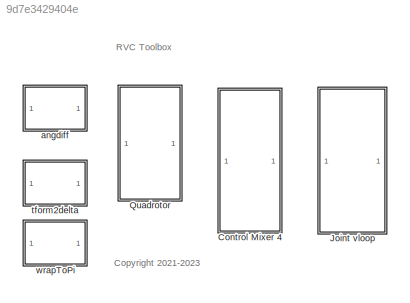
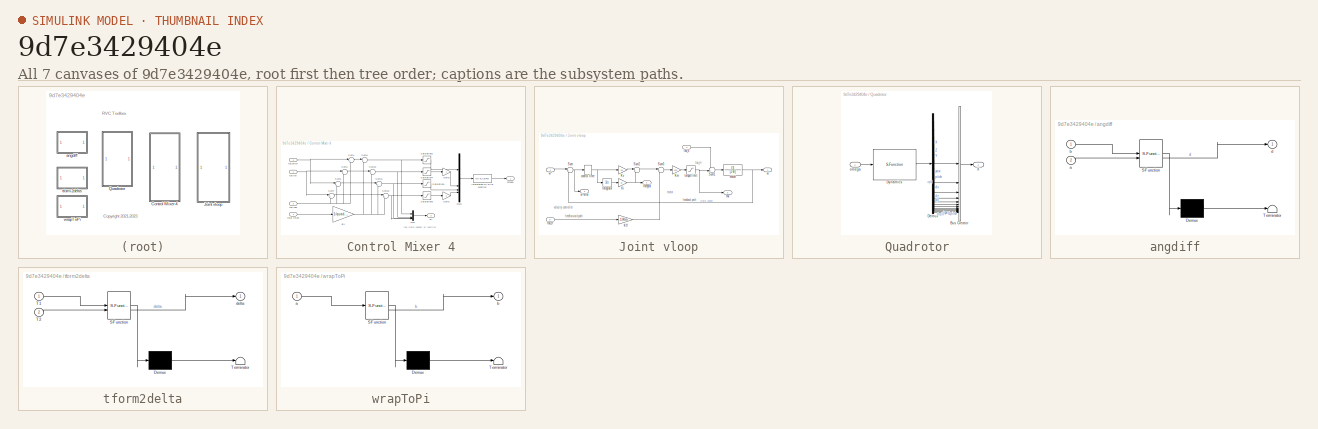
[diagram: thumbnail index - all 7 canvases of the model, root first then tree order]
MODEL slx_9d7e3429404e
KIND library
CONFIG AbsTol = auto
CONFIG EnableMultiTasking = off
CONFIG FixedStep = auto
CONFIG MaxStep = auto
CONFIG MinStep = auto
CONFIG RelTol = 1e-3
CONFIG SampleTimeConstraint = Unconstrained
CONFIG SolverName = VariableStepAuto
CONFIG StartTime = 0.0
CONFIG StopTime = 10.0
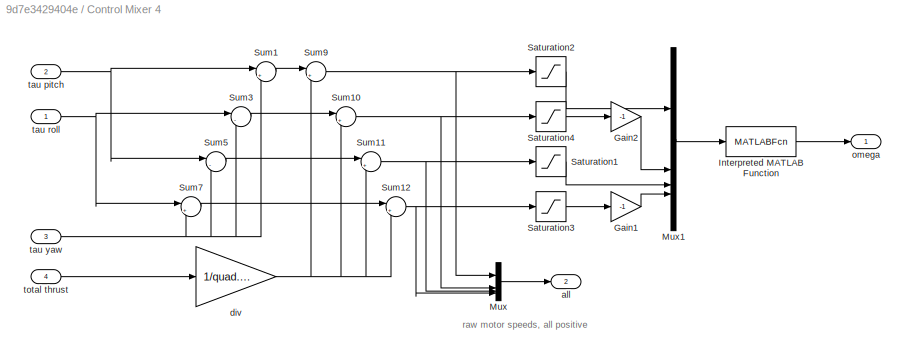
BLOCK [SubSystem] Control Mixer 4
BLOCK [Gain] Control Mixer 4/Gain1
  Gain = -1
BLOCK [Gain] Control Mixer 4/Gain2
  Gain = -1
BLOCK [MATLABFcn] Control Mixer 4/Interpreted MATLAB Function
  MATLABFcn = sign(u) .* sqrt(abs(u)/quad.b)
BLOCK [Mux] Control Mixer 4/Mux
  DisplayOption = bar
BLOCK [Mux] Control Mixer 4/Mux1
  DisplayOption = bar
BLOCK [Saturate] Control Mixer 4/Saturation1
  LowerLimit = minrot
  UpperLimit = maxrot
BLOCK [Saturate] Control Mixer 4/Saturation2
  LowerLimit = minrot
  UpperLimit = maxrot
BLOCK [Saturate] Control Mixer 4/Saturation3
  LowerLimit = minrot
  UpperLimit = maxrot
BLOCK [Saturate] Control Mixer 4/Saturation4
  LowerLimit = minrot
  UpperLimit = maxrot
BLOCK [Sum] Control Mixer 4/Sum1
  InputSameDT = on
  Inputs = |++
  OutDataTypeStr = Inherit: Same as first input
  SaturateOnIntegerOverflow = on
BLOCK [Sum] Control Mixer 4/Sum10
  InputSameDT = on
  Inputs = |++
  OutDataTypeStr = Inherit: Same as first input
  SaturateOnIntegerOverflow = on
BLOCK [Sum] Control Mixer 4/Sum11
  InputSameDT = on
  Inputs = |++
  OutDataTypeStr = Inherit: Same as first input
  SaturateOnIntegerOverflow = on
BLOCK [Sum] Control Mixer 4/Sum12
  InputSameDT = on
  Inputs = |++
  OutDataTypeStr = Inherit: Same as first input
  SaturateOnIntegerOverflow = on
BLOCK [Sum] Control Mixer 4/Sum3
  InputSameDT = on
  Inputs = |--
  OutDataTypeStr = Inherit: Same as first input
  SaturateOnIntegerOverflow = on
BLOCK [Sum] Control Mixer 4/Sum5
  InputSameDT = on
  Inputs = |-+
  OutDataTypeStr = Inherit: Same as first input
  SaturateOnIntegerOverflow = on
BLOCK [Sum] Control Mixer 4/Sum7
  InputSameDT = on
  Inputs = |+-
  OutDataTypeStr = Inherit: Same as first input
  SaturateOnIntegerOverflow = on
BLOCK [Sum] Control Mixer 4/Sum9
  InputSameDT = on
  Inputs = |++
  OutDataTypeStr = Inherit: Same as first input
  SaturateOnIntegerOverflow = on
BLOCK [Outport] Control Mixer 4/all
  Port = 2
  VectorParamsAs1DForOutWhenUnconnected = off
BLOCK [Gain] Control Mixer 4/div
  Gain = 1/quad.nrotors
BLOCK [Outport] Control Mixer 4/omega
  VectorParamsAs1DForOutWhenUnconnected = off
BLOCK [Inport] Control Mixer 4/tau pitch
  Port = 2
BLOCK [Inport] Control Mixer 4/tau roll
BLOCK [Inport] Control Mixer 4/tau yaw
  Port = 3
BLOCK [Inport] Control Mixer 4/total thrust
  Port = 4
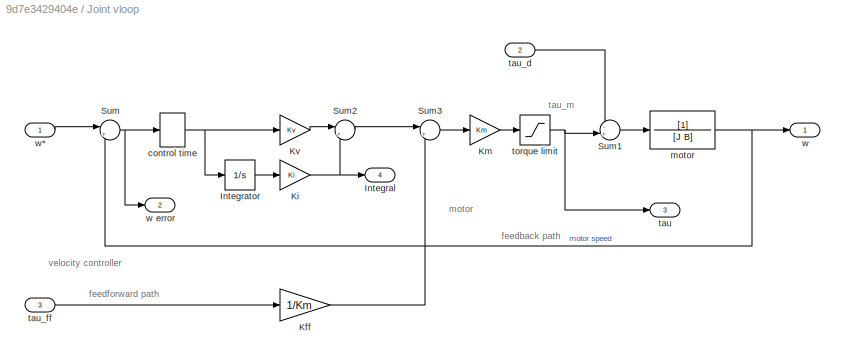
BLOCK [SubSystem] Joint vloop
BLOCK [Outport] Joint vloop/Integral
  Port = 4
  VectorParamsAs1DForOutWhenUnconnected = off
BLOCK [Integrator] Joint vloop/Integrator
BLOCK [Gain] Joint vloop/Kff
  Gain = 1/Km
BLOCK [Gain] Joint vloop/Ki
  Gain = Ki
BLOCK [Gain] Joint vloop/Km
  Gain = Km
BLOCK [Gain] Joint vloop/Kv
  Gain = Kv
BLOCK [Sum] Joint vloop/Sum
  Inputs = |+-
BLOCK [Sum] Joint vloop/Sum1
  Inputs = -+|
BLOCK [Sum] Joint vloop/Sum2
  Inputs = |++
BLOCK [Sum] Joint vloop/Sum3
  Inputs = |++
BLOCK [Delay] Joint vloop/control time
  DelayLength = 1
  InputPortMap = u0
  SampleTime = T
  UserDataPersistent = on
BLOCK [TransferFcn] Joint vloop/motor
  ContinuousStateAttributes = 'qd'
  Denominator = [J B]
BLOCK [Outport] Joint vloop/tau
  Port = 3
  VectorParamsAs1DForOutWhenUnconnected = off
BLOCK [Inport] Joint vloop/tau_d
  Port = 2
BLOCK [Inport] Joint vloop/tau_ff
  Port = 3
BLOCK [Saturate] Joint vloop/torque limit
  LowerLimit = -tau_max
  UpperLimit = tau_max
BLOCK [Outport] Joint vloop/w
  VectorParamsAs1DForOutWhenUnconnected = off
BLOCK [Outport] Joint vloop/w error
  Port = 2
  VectorParamsAs1DForOutWhenUnconnected = off
BLOCK [Inport] Joint vloop/w*
BLOCK [SubSystem] Quadrotor
BLOCK [BusCreator] Quadrotor/Bus Creator
  DisplayOption = bar
  InheritFromInputs = on
  Inputs = 'X','Y','Z','yaw','pitch','roll','dx','dy','dz','dyaw','dpitch','droll'
BLOCK [Demux] Quadrotor/Demux
  DisplayOption = none
  Outputs = 12
BLOCK [S-Function] Quadrotor/Dynamics
  EnableBusSupport = off
  FunctionName = quadrotor_dynamics
  Parameters = quad, x0, groundflag
  SFcnIsStateOwnerBlock = off
  SFunctionDeploymentMode = off
BLOCK [Outport] Quadrotor/X
  VectorParamsAs1DForOutWhenUnconnected = off
BLOCK [Inport] Quadrotor/omega
BLOCK [SubSystem] angdiff
  ErrorFcn = Stateflow.Translate.translate
  PermitHierarchicalResolution = ExplicitOnly
  SFBlockType = MATLAB Function
  TreatAsAtomicUnit = on
BLOCK [Demux] angdiff/ Demux 
  Outputs = 1
BLOCK [S-Function] angdiff/ SFunction 
  EnableBusSupport = off
  FunctionName = sf_sfun
  PortCounts = [2 2]
  SFcnIsStateOwnerBlock = off
  SFunctionDeploymentMode = off
  Tag = Stateflow S-Function 2
BLOCK [Terminator] angdiff/ Terminator 
BLOCK [Inport] angdiff/a
  Port = 2
BLOCK [Inport] angdiff/b
BLOCK [Outport] angdiff/d
BLOCK [SubSystem] tform2delta
  ErrorFcn = Stateflow.Translate.translate
  PermitHierarchicalResolution = ExplicitOnly
  SFBlockType = MATLAB Function
  TreatAsAtomicUnit = on
BLOCK [Demux] tform2delta/ Demux 
  Outputs = 1
BLOCK [S-Function] tform2delta/ SFunction 
  EnableBusSupport = off
  FunctionName = sf_sfun
  PortCounts = [2 2]
  SFcnIsStateOwnerBlock = off
  SFunctionDeploymentMode = off
  Tag = Stateflow S-Function 1
BLOCK [Terminator] tform2delta/ Terminator 
BLOCK [Inport] tform2delta/T1
BLOCK [Inport] tform2delta/T2
  Port = 2
BLOCK [Outport] tform2delta/delta
BLOCK [SubSystem] wrapToPi
  ErrorFcn = Stateflow.Translate.translate
  PermitHierarchicalResolution = ExplicitOnly
  SFBlockType = MATLAB Function
  TreatAsAtomicUnit = on
BLOCK [Demux] wrapToPi/ Demux 
  Outputs = 1
BLOCK [S-Function] wrapToPi/ SFunction 
  EnableBusSupport = off
  FunctionName = sf_sfun
  PortCounts = [1 2]
  SFcnIsStateOwnerBlock = off
  SFunctionDeploymentMode = off
  Tag = Stateflow S-Function 3
BLOCK [Terminator] wrapToPi/ Terminator 
BLOCK [Inport] wrapToPi/a
BLOCK [Outport] wrapToPi/b
ANNOTATION (root): <copyright redacted>
ANNOTATION (root): RVC Toolbox
ANNOTATION Control Mixer 4: raw motor speeds, all positive
ANNOTATION Joint vloop: motor
ANNOTATION Joint vloop: velocity controller
ANNOTATION Joint vloop: feedback path
ANNOTATION Joint vloop: feedforward path
ANNOTATION Joint vloop: tau_m
LINE Control Mixer 4/Gain1:1 -> Control Mixer 4/Mux1:4
LINE Control Mixer 4/Gain2:1 -> Control Mixer 4/Mux1:2
LINE Control Mixer 4/Interpreted MATLAB Function:1 -> Control Mixer 4/omega:1
LINE Control Mixer 4/Mux1:1 -> Control Mixer 4/Interpreted MATLAB Function:1
LINE Control Mixer 4/Mux:1 -> Control Mixer 4/all:1
LINE Control Mixer 4/Saturation1:1 -> Control Mixer 4/Mux1:3
LINE Control Mixer 4/Saturation2:1 -> Control Mixer 4/Mux1:1
LINE Control Mixer 4/Saturation3:1 -> Control Mixer 4/Gain1:1
LINE Control Mixer 4/Saturation4:1 -> Control Mixer 4/Gain2:1
NET Control Mixer 4/Sum10:1 -> Control Mixer 4/Mux:2, Control Mixer 4/Saturation4:1
NET Control Mixer 4/Sum11:1 -> Control Mixer 4/Mux:3, Control Mixer 4/Saturation1:1
NET Control Mixer 4/Sum12:1 -> Control Mixer 4/Mux:4, Control Mixer 4/Saturation3:1
LINE Control Mixer 4/Sum1:1 -> Control Mixer 4/Sum9:1
LINE Control Mixer 4/Sum3:1 -> Control Mixer 4/Sum10:1
LINE Control Mixer 4/Sum5:1 -> Control Mixer 4/Sum11:1
LINE Control Mixer 4/Sum7:1 -> Control Mixer 4/Sum12:1
NET Control Mixer 4/Sum9:1 -> Control Mixer 4/Mux:1, Control Mixer 4/Saturation2:1
NET Control Mixer 4/div:1 -> Control Mixer 4/Sum10:2, Control Mixer 4/Sum11:2, Control Mixer 4/Sum12:2, Control Mixer 4/Sum9:2
NET Control Mixer 4/tau pitch:1 -> Control Mixer 4/Sum1:1, Control Mixer 4/Sum5:1
NET Control Mixer 4/tau roll:1 -> Control Mixer 4/Sum3:1, Control Mixer 4/Sum7:1
NET Control Mixer 4/tau yaw:1 -> Control Mixer 4/Sum1:2, Control Mixer 4/Sum3:2, Control Mixer 4/Sum5:2, Control Mixer 4/Sum7:2
LINE Control Mixer 4/total thrust:1 -> Control Mixer 4/div:1
LINE Joint vloop/Integrator:1 -> Joint vloop/Ki:1
LINE Joint vloop/Kff:1 -> Joint vloop/Sum3:2
NET Joint vloop/Ki:1 -> Joint vloop/Integral:1, Joint vloop/Sum2:2
LINE Joint vloop/Km:1 -> Joint vloop/torque limit:1
LINE Joint vloop/Kv:1 -> Joint vloop/Sum2:1
LINE Joint vloop/Sum1:1 -> Joint vloop/motor:1
LINE Joint vloop/Sum2:1 -> Joint vloop/Sum3:1
LINE Joint vloop/Sum3:1 -> Joint vloop/Km:1
NET Joint vloop/Sum:1 -> Joint vloop/control time:1, Joint vloop/w error:1
NET Joint vloop/control time:1 -> Joint vloop/Integrator:1, Joint vloop/Kv:1
NET Joint vloop/motor:1 -> Joint vloop/Sum:2, Joint vloop/w:1
LINE Joint vloop/tau_d:1 -> Joint vloop/Sum1:1
LINE Joint vloop/tau_ff:1 -> Joint vloop/Kff:1
NET Joint vloop/torque limit:1 -> Joint vloop/Sum1:2, Joint vloop/tau:1
LINE Joint vloop/w*:1 -> Joint vloop/Sum:1
LINE Quadrotor/Bus Creator:1 -> Quadrotor/X:1
LINE Quadrotor/Demux:1 -> Quadrotor/Bus Creator:1
LINE Quadrotor/Demux:10 -> Quadrotor/Bus Creator:10
LINE Quadrotor/Demux:11 -> Quadrotor/Bus Creator:11
LINE Quadrotor/Demux:12 -> Quadrotor/Bus Creator:12
LINE Quadrotor/Demux:2 -> Quadrotor/Bus Creator:2
LINE Quadrotor/Demux:3 -> Quadrotor/Bus Creator:3
LINE Quadrotor/Demux:4 -> Quadrotor/Bus Creator:4
LINE Quadrotor/Demux:5 -> Quadrotor/Bus Creator:5
LINE Quadrotor/Demux:6 -> Quadrotor/Bus Creator:6
LINE Quadrotor/Demux:7 -> Quadrotor/Bus Creator:7
LINE Quadrotor/Demux:8 -> Quadrotor/Bus Creator:8
LINE Quadrotor/Demux:9 -> Quadrotor/Bus Creator:9
LINE Quadrotor/Dynamics:1 -> Quadrotor/Demux:1
LINE Quadrotor/omega:1 -> Quadrotor/Dynamics:1
note: NET lines group one-source signal fan-out (src -> all destinations, sorted); 1:1 wires keep LINE
CHART angdiff states=1 transitions=1
  STATE_LABEL 'eML_blk_kernel()'
  STATE_LABEL 'SCRIPT:\nfunction d = angdiff(b,a)\n\nd = angdiff(a,b);\n\nend\n'
CHART wrapToPi states=1 transitions=1
  STATE_LABEL 'eML_blk_kernel()'
  STATE_LABEL 'SCRIPT:\nfunction b = wrapToPi(a)\n\nb = wrapToPi(a);\n\nend\n'
CHART tform2delta states=1 transitions=1
  STATE_LABEL 'eML_blk_kernel()'
  STATE_LABEL "SCRIPT:\nfunction delta = tr2delta(T1,T2)\n\ndelta = tform2delta(T1,T2,fliptr=true)';\n\nend\n"
CHART  states=0 transitions=0
CHART  states=0 transitions=0
CHART  states=0 transitions=0
